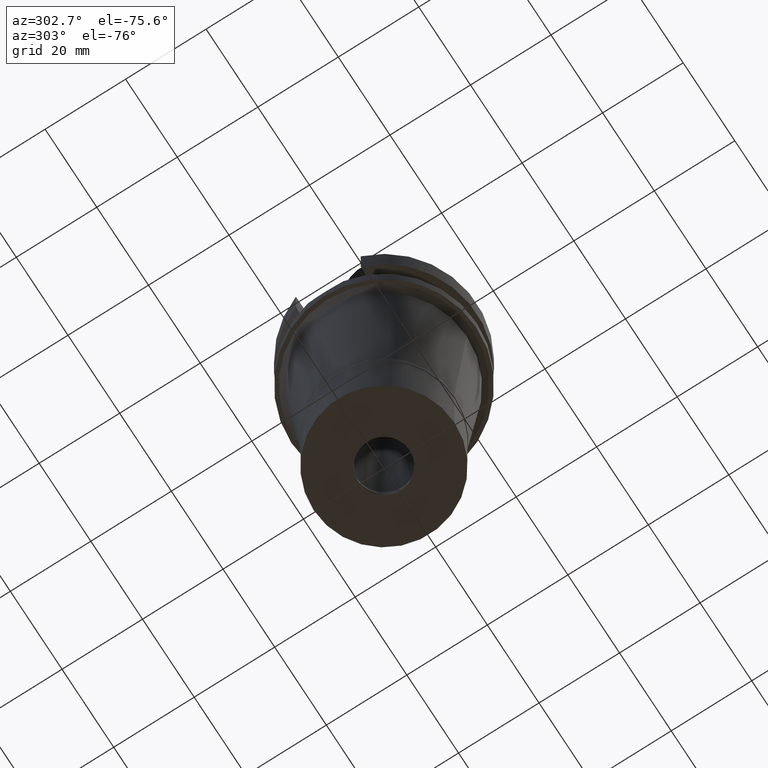
[diagram: clean part render]
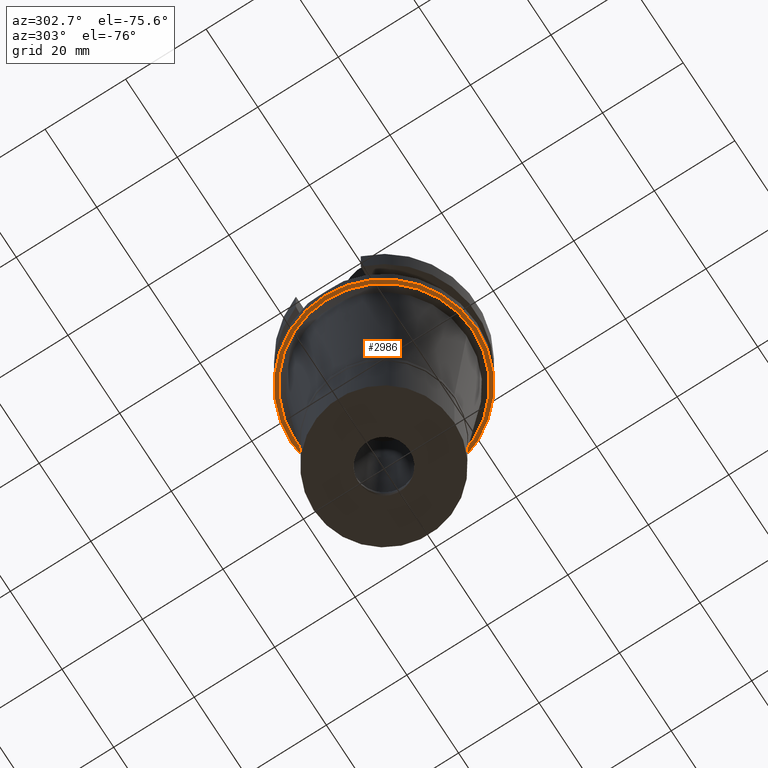
[diagram: same view with one face highlighted and labeled with its STEP entity id]
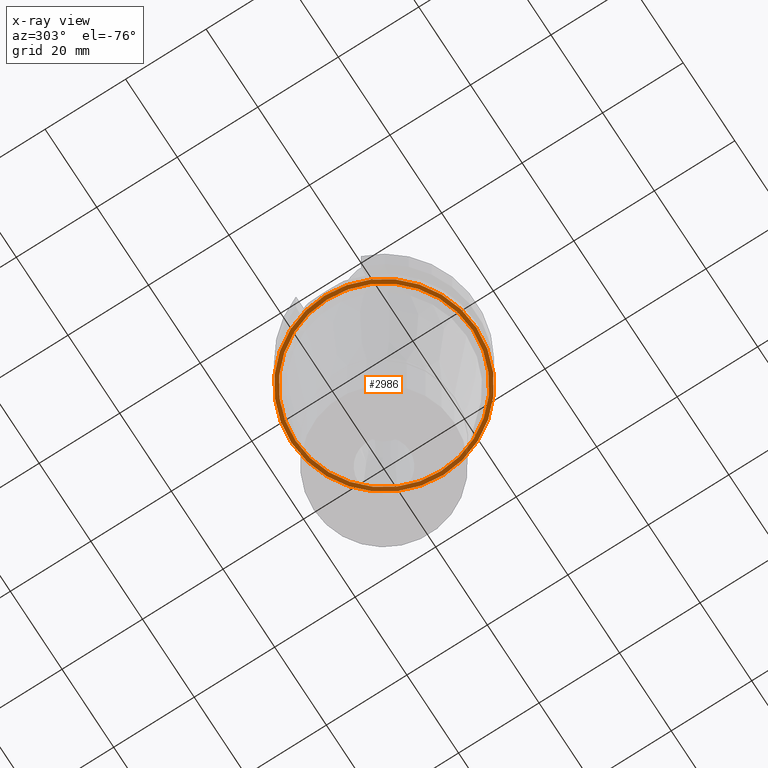
[diagram: x-ray of the same camera — body ghosted, the highlighted face saturated]
A machine part, auxiliary view. The second image highlights one B-rep face of the part: STEP entity #2986.
The next image is the same camera in x-ray: the body ghosted, the highlighted face saturated — about 29% of this face is hidden behind the body in this view.
In plain terms, the highlighted planar face has unit normal (0, 0, -1).
Its self-contained STEP definition (entity closure, byte-faithful):
#5 = FACE_BOUND ( 'NONE', #474, .T. ) ;
#109 = CIRCLE ( 'NONE', #2246, 22.02083827595999921 ) ;
#117 = EDGE_CURVE ( 'NONE', #3012, #1393, #1517, .T. ) ;
#284 = DIRECTION ( 'NONE',  ( 0.0000000000000000000, 1.000000000000000000, 0.0000000000000000000 ) ) ;
#341 = DIRECTION ( 'NONE',  ( 0.0000000000000000000, 0.0000000000000000000, 1.000000000000000000 ) ) ;
#474 = EDGE_LOOP ( 'NONE', ( #741, #2895 ) ) ;
#730 = CARTESIAN_POINT ( 'NONE',  ( 0.0000000000000000000, 0.0000000000000000000, -22.00000000000000000 ) ) ;
#741 = ORIENTED_EDGE ( 'NONE', *, *, #1686, .F. ) ;
#792 = VERTEX_POINT ( 'NONE', #2984 ) ;
#921 = AXIS2_PLACEMENT_3D ( 'NONE', #2475, #341, #1045 ) ;
#958 = CARTESIAN_POINT ( 'NONE',  ( 0.0000000000000000000, 0.0000000000000000000, -22.00000000000000000 ) ) ;
#1009 = ORIENTED_EDGE ( 'NONE', *, *, #2713, .F. ) ;
#1045 = DIRECTION ( 'NONE',  ( 0.0000000000000000000, -1.000000000000000000, 0.0000000000000000000 ) ) ;
#1157 = CARTESIAN_POINT ( 'NONE',  ( 0.0000000000000000000, 22.02083827595999921, -22.00000000000000000 ) ) ;
#1178 = FACE_OUTER_BOUND ( 'NONE', #1931, .T. ) ;
#1256 = AXIS2_PLACEMENT_3D ( 'NONE', #730, #2594, #2796 ) ;
#1379 = AXIS2_PLACEMENT_3D ( 'NONE', #2448, #2874, #284 ) ;
#1393 = VERTEX_POINT ( 'NONE', #2267 ) ;
#1499 = CIRCLE ( 'NONE', #921, 23.00000000000000000 ) ;
#1517 = CIRCLE ( 'NONE', #1379, 23.00000000000000000 ) ;
#1656 = DIRECTION ( 'NONE',  ( 0.0000000000000000000, 0.0000000000000000000, -1.000000000000000000 ) ) ;
#1686 = EDGE_CURVE ( 'NONE', #1838, #792, #109, .T. ) ;
#1698 = ORIENTED_EDGE ( 'NONE', *, *, #117, .F. ) ;
#1838 = VERTEX_POINT ( 'NONE', #1157 ) ;
#1866 = DIRECTION ( 'NONE',  ( 0.0000000000000000000, 0.0000000000000000000, -1.000000000000000000 ) ) ;
#1931 = EDGE_LOOP ( 'NONE', ( #1698, #1009 ) ) ;
#1939 = CIRCLE ( 'NONE', #1256, 22.02083827595999921 ) ;
#1941 = CARTESIAN_POINT ( 'NONE',  ( 0.0000000000000000000, 23.00000000000000000, -22.00000000000000000 ) ) ;
#2101 = CARTESIAN_POINT ( 'NONE',  ( 0.0000000000000000000, 0.0000000000000000000, -22.00000000000000000 ) ) ;
#2126 = PLANE ( 'NONE',  #2699 ) ;
#2246 = AXIS2_PLACEMENT_3D ( 'NONE', #2101, #1866, #2595 ) ;
#2267 = CARTESIAN_POINT ( 'NONE',  ( 0.0000000000000000000, -23.00000000000000000, -22.00000000000000000 ) ) ;
#2448 = CARTESIAN_POINT ( 'NONE',  ( 0.0000000000000000000, 0.0000000000000000000, -22.00000000000000000 ) ) ;
#2475 = CARTESIAN_POINT ( 'NONE',  ( 0.0000000000000000000, 0.0000000000000000000, -22.00000000000000000 ) ) ;
#2594 = DIRECTION ( 'NONE',  ( 0.0000000000000000000, 0.0000000000000000000, -1.000000000000000000 ) ) ;
#2595 = DIRECTION ( 'NONE',  ( 0.0000000000000000000, 1.000000000000000000, 0.0000000000000000000 ) ) ;
#2624 = DIRECTION ( 'NONE',  ( 0.0000000000000000000, -1.000000000000000000, 0.0000000000000000000 ) ) ;
#2699 = AXIS2_PLACEMENT_3D ( 'NONE', #958, #1656, #2624 ) ;
#2713 = EDGE_CURVE ( 'NONE', #1393, #3012, #1499, .T. ) ;
#2796 = DIRECTION ( 'NONE',  ( 0.0000000000000000000, -1.000000000000000000, 0.0000000000000000000 ) ) ;
#2874 = DIRECTION ( 'NONE',  ( 0.0000000000000000000, 0.0000000000000000000, 1.000000000000000000 ) ) ;
#2895 = ORIENTED_EDGE ( 'NONE', *, *, #2900, .F. ) ;
#2900 = EDGE_CURVE ( 'NONE', #792, #1838, #1939, .T. ) ;
#2984 = CARTESIAN_POINT ( 'NONE',  ( 0.0000000000000000000, -22.02083827595999921, -22.00000000000000000 ) ) ;
#2986 = ADVANCED_FACE ( 'NONE', ( #1178, #5 ), #2126, .T. ) ;
#3012 = VERTEX_POINT ( 'NONE', #1941 ) ;